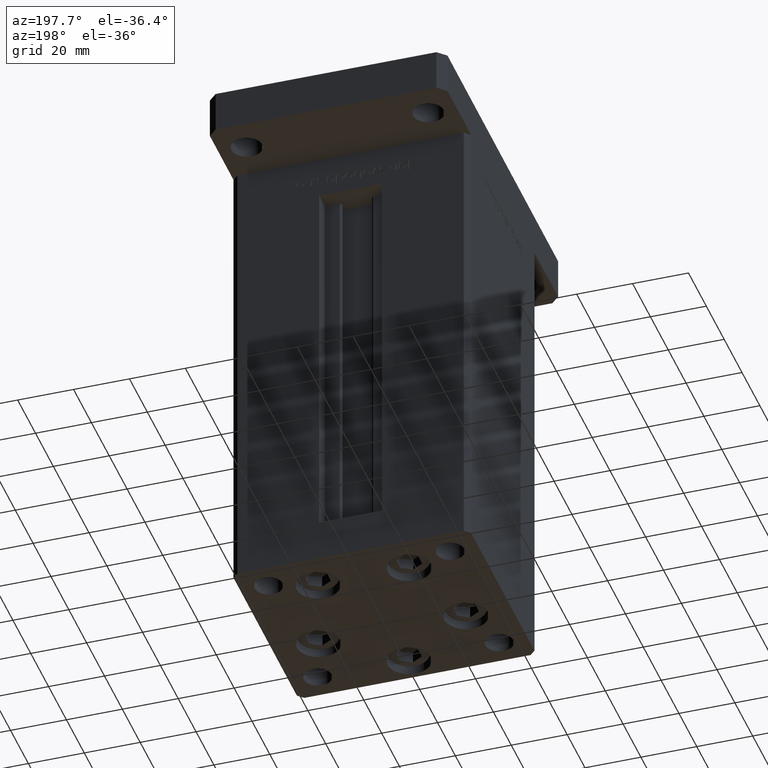
[diagram: clean part render]
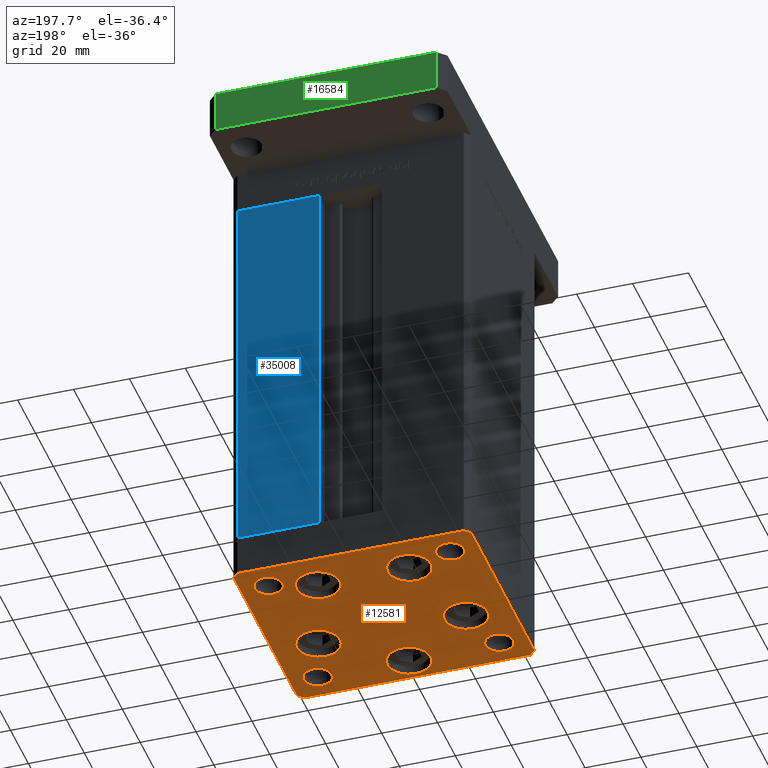
[diagram: same view with three faces highlighted in distinct colors, each labeled with its STEP entity id]
A machine part, auxiliary view with three faces highlighted in distinct colors.
Their STEP definitions:

[orange] entity #12581 — the highlighted planar face has unit normal (0, 0, -1).
#18 = EDGE_CURVE ( 'NONE', #41180, #41699, #9660, .T. ) ;
#27 = CARTESIAN_POINT ( 'NONE',  ( 18.64865316429776954, -9.333333333333330373, 0.000000000000000000 ) ) ;
#90 = DIRECTION ( 'NONE',  ( 0.000000000000000000, -0.000000000000000000, -1.000000000000000000 ) ) ;
#290 = DIRECTION ( 'NONE',  ( 0.000000000000000000, -0.000000000000000000, -1.000000000000000000 ) ) ;
#555 = DIRECTION ( 'NONE',  ( 1.000000000000000000, 0.000000000000000000, 0.000000000000000000 ) ) ;
#569 = AXIS2_PLACEMENT_3D ( 'NONE', #21819, #38362, #17760 ) ;
#852 = VERTEX_POINT ( 'NONE', #40516 ) ;
#1196 = CARTESIAN_POINT ( 'NONE',  ( -32.50000000000000000, -27.49999999999999645, 0.000000000000000000 ) ) ;
#1447 = CARTESIAN_POINT ( 'NONE',  ( 42.49999999999992895, 35.50000000000000000, 0.000000000000000000 ) ) ;
#1515 = AXIS2_PLACEMENT_3D ( 'NONE', #24155, #49361, #16547 ) ;
#1811 = DIRECTION ( 'NONE',  ( 1.000000000000000000, 0.000000000000000000, 0.000000000000000000 ) ) ;
#2284 = CIRCLE ( 'NONE', #569, 5.000000000000000888 ) ;
#2429 = EDGE_LOOP ( 'NONE', ( #10975, #4686 ) ) ;
#2451 = CARTESIAN_POINT ( 'NONE',  ( 40.49999999999991473, 37.50000000000000711, 0.000000000000000000 ) ) ;
#2696 = VERTEX_POINT ( 'NONE', #27134 ) ;
#2708 = EDGE_CURVE ( 'NONE', #28175, #38748, #43661, .T. ) ;
#2770 = AXIS2_PLACEMENT_3D ( 'NONE', #46358, #30103, #47148 ) ;
#2946 = EDGE_CURVE ( 'NONE', #37363, #2696, #33054, .T. ) ;
#3086 = CARTESIAN_POINT ( 'NONE',  ( -42.50000000000000000, -35.50000000000000711, 0.000000000000000000 ) ) ;
#3339 = CARTESIAN_POINT ( 'NONE',  ( -7.749999999999996447, -28.00000000000000000, 0.000000000000000000 ) ) ;
#3395 = CARTESIAN_POINT ( 'NONE',  ( 42.50000000000000711, -35.50000000000000000, 0.000000000000000000 ) ) ;
#3677 = ORIENTED_EDGE ( 'NONE', *, *, #7046, .T. ) ;
#4007 = DIRECTION ( 'NONE',  ( 0.000000000000000000, -0.000000000000000000, -1.000000000000000000 ) ) ;
#4081 = CARTESIAN_POINT ( 'NONE',  ( 42.49999999999992895, 35.50000000000000000, 0.000000000000000000 ) ) ;
#4112 = CARTESIAN_POINT ( 'NONE',  ( -42.50000000000000711, 35.49999999999997158, 0.000000000000000000 ) ) ;
#4686 = ORIENTED_EDGE ( 'NONE', *, *, #44554, .F. ) ;
#4711 = ORIENTED_EDGE ( 'NONE', *, *, #29203, .T. ) ;
#4761 = EDGE_LOOP ( 'NONE', ( #4711, #32501 ) ) ;
#4819 = VERTEX_POINT ( 'NONE', #50353 ) ;
#4963 = VECTOR ( 'NONE', #19016, 1000.000000000000000 ) ;
#5196 = CARTESIAN_POINT ( 'NONE',  ( -40.49999999999999289, -37.50000000000002132, 0.000000000000000000 ) ) ;
#5242 = CARTESIAN_POINT ( 'NONE',  ( 0.000000000000000000, 0.000000000000000000, 0.000000000000000000 ) ) ;
#5273 = VERTEX_POINT ( 'NONE', #28848 ) ;
#5324 = VERTEX_POINT ( 'NONE', #7118 ) ;
#5479 = CIRCLE ( 'NONE', #50407, 7.750000000000000000 ) ;
#5618 = AXIS2_PLACEMENT_3D ( 'NONE', #48943, #28356, #22924 ) ;
#5953 = EDGE_CURVE ( 'NONE', #38748, #12607, #44090, .T. ) ;
#6561 = CIRCLE ( 'NONE', #13499, 7.750000000000000000 ) ;
#6700 = EDGE_CURVE ( 'NONE', #852, #7304, #41818, .T. ) ;
#7046 = EDGE_CURVE ( 'NONE', #16061, #37490, #25377, .T. ) ;
#7118 = CARTESIAN_POINT ( 'NONE',  ( -27.50000000000000000, -27.49999999999999645, 0.000000000000000000 ) ) ;
#7259 = CIRCLE ( 'NONE', #9886, 7.750000000000000000 ) ;
#7304 = VERTEX_POINT ( 'NONE', #33998 ) ;
#7551 = EDGE_CURVE ( 'NONE', #12607, #16602, #49661, .T. ) ;
#7764 = CIRCLE ( 'NONE', #15569, 7.750000000000003553 ) ;
#8348 = CARTESIAN_POINT ( 'NONE',  ( -16.32291334290543006, 22.74999999999999645, 0.000000000000000000 ) ) ;
#8490 = EDGE_LOOP ( 'NONE', ( #29304, #49832 ) ) ;
#8922 = ORIENTED_EDGE ( 'NONE', *, *, #7551, .T. ) ;
#9627 = DIRECTION ( 'NONE',  ( 1.000000000000000000, 0.000000000000000000, 0.000000000000000000 ) ) ;
#9660 = CIRCLE ( 'NONE', #49519, 4.999999999999997335 ) ;
#9886 = AXIS2_PLACEMENT_3D ( 'NONE', #41330, #90, #12575 ) ;
#10073 = VERTEX_POINT ( 'NONE', #3339 ) ;
#10693 = EDGE_LOOP ( 'NONE', ( #38981, #18725 ) ) ;
#10936 = VECTOR ( 'NONE', #33708, 1000.000000000000000 ) ;
#10975 = ORIENTED_EDGE ( 'NONE', *, *, #26875, .F. ) ;
#11271 = AXIS2_PLACEMENT_3D ( 'NONE', #45785, #33070, #17056 ) ;
#11372 = AXIS2_PLACEMENT_3D ( 'NONE', #43314, #34936, #1811 ) ;
#12338 = FACE_BOUND ( 'NONE', #10693, .T. ) ;
#12506 = DIRECTION ( 'NONE',  ( -0.7071067811865474617, 0.7071067811865474617, 0.000000000000000000 ) ) ;
#12575 = DIRECTION ( 'NONE',  ( 1.000000000000000000, 0.000000000000000000, 0.000000000000000000 ) ) ;
#12581 = ADVANCED_FACE ( 'NONE', ( #49227, #12338, #28912, #30498, #22604, #38093, #51359, #13929, #18270, #46743 ), #22342, .T. ) ;
#12607 = VERTEX_POINT ( 'NONE', #1447 ) ;
#12995 = VERTEX_POINT ( 'NONE', #24365 ) ;
#13408 = DIRECTION ( 'NONE',  ( 1.000000000000000000, 0.000000000000000000, 0.000000000000000000 ) ) ;
#13499 = AXIS2_PLACEMENT_3D ( 'NONE', #37463, #290, #555 ) ;
#13575 = CIRCLE ( 'NONE', #31794, 5.000000000000000888 ) ;
#13747 = DIRECTION ( 'NONE',  ( 1.000000000000000000, 0.000000000000000000, 0.000000000000000000 ) ) ;
#13929 = FACE_BOUND ( 'NONE', #2429, .T. ) ;
#14352 = AXIS2_PLACEMENT_3D ( 'NONE', #16557, #33119, #47889 ) ;
#14534 = LINE ( 'NONE', #30836, #53627 ) ;
#15098 = EDGE_LOOP ( 'NONE', ( #20664, #3677 ) ) ;
#15569 = AXIS2_PLACEMENT_3D ( 'NONE', #31538, #22046, #19042 ) ;
#15809 = CARTESIAN_POINT ( 'NONE',  ( -18.64865316429776954, -9.333333333333335702, 0.000000000000000000 ) ) ;
#16061 = VERTEX_POINT ( 'NONE', #16368 ) ;
#16119 = VERTEX_POINT ( 'NONE', #52724 ) ;
#16206 = EDGE_CURVE ( 'NONE', #7304, #852, #7259, .T. ) ;
#16368 = CARTESIAN_POINT ( 'NONE',  ( 34.14865316429776954, -9.333333333333328596, 0.000000000000000000 ) ) ;
#16547 = DIRECTION ( 'NONE',  ( 1.000000000000000000, 0.000000000000000000, 0.000000000000000000 ) ) ;
#16557 = CARTESIAN_POINT ( 'NONE',  ( -26.39865316429776954, -9.333333333333337478, 0.000000000000000000 ) ) ;
#16602 = VERTEX_POINT ( 'NONE', #33944 ) ;
#17056 = DIRECTION ( 'NONE',  ( 1.000000000000000000, 0.000000000000000000, 0.000000000000000000 ) ) ;
#17358 = DIRECTION ( 'NONE',  ( 0.000000000000000000, -0.000000000000000000, -1.000000000000000000 ) ) ;
#17529 = CARTESIAN_POINT ( 'NONE',  ( 42.50000000000000711, -35.50000000000000000, 0.000000000000000000 ) ) ;
#17760 = DIRECTION ( 'NONE',  ( 1.000000000000000000, 0.000000000000000000, 0.000000000000000000 ) ) ;
#18071 = ORIENTED_EDGE ( 'NONE', *, *, #51885, .F. ) ;
#18270 = FACE_OUTER_BOUND ( 'NONE', #32297, .T. ) ;
#18360 = EDGE_CURVE ( 'NONE', #41699, #41180, #48936, .T. ) ;
#18501 = ORIENTED_EDGE ( 'NONE', *, *, #16206, .T. ) ;
#18725 = ORIENTED_EDGE ( 'NONE', *, *, #2946, .T. ) ;
#19016 = DIRECTION ( 'NONE',  ( -1.000000000000000000, -3.426614273534436165E-16, 0.000000000000000000 ) ) ;
#19042 = DIRECTION ( 'NONE',  ( 1.000000000000000000, 0.000000000000000000, 0.000000000000000000 ) ) ;
#19320 = AXIS2_PLACEMENT_3D ( 'NONE', #5242, #38353, #13408 ) ;
#19408 = CARTESIAN_POINT ( 'NONE',  ( -37.50000000000000711, -27.49999999999999645, 0.000000000000000000 ) ) ;
#19706 = EDGE_CURVE ( 'NONE', #16119, #42626, #26479, .T. ) ;
#19815 = EDGE_CURVE ( 'NONE', #20146, #10073, #20405, .T. ) ;
#19859 = ORIENTED_EDGE ( 'NONE', *, *, #5953, .T. ) ;
#20135 = AXIS2_PLACEMENT_3D ( 'NONE', #8348, #4007, #24917 ) ;
#20146 = VERTEX_POINT ( 'NONE', #24234 ) ;
#20405 = CIRCLE ( 'NONE', #33434, 7.750000000000000000 ) ;
#20664 = ORIENTED_EDGE ( 'NONE', *, *, #28223, .T. ) ;
#21302 = DIRECTION ( 'NONE',  ( 1.000000000000000000, 0.000000000000000000, 0.000000000000000000 ) ) ;
#21385 = EDGE_CURVE ( 'NONE', #10073, #20146, #6561, .T. ) ;
#21819 = CARTESIAN_POINT ( 'NONE',  ( -32.50000000000000000, 27.50000000000000355, 0.000000000000000000 ) ) ;
#22046 = DIRECTION ( 'NONE',  ( 0.000000000000000000, -0.000000000000000000, -1.000000000000000000 ) ) ;
#22305 = VERTEX_POINT ( 'NONE', #33499 ) ;
#22342 = PLANE ( 'NONE',  #19320 ) ;
#22452 = AXIS2_PLACEMENT_3D ( 'NONE', #34122, #38443, #13747 ) ;
#22567 = EDGE_CURVE ( 'NONE', #4819, #42409, #29112, .T. ) ;
#22604 = FACE_BOUND ( 'NONE', #49352, .T. ) ;
#22924 = DIRECTION ( 'NONE',  ( 1.000000000000000000, 0.000000000000000000, 0.000000000000000000 ) ) ;
#23425 = DIRECTION ( 'NONE',  ( 0.000000000000000000, -0.000000000000000000, -1.000000000000000000 ) ) ;
#24042 = CIRCLE ( 'NONE', #37022, 7.750000000000000000 ) ;
#24155 = CARTESIAN_POINT ( 'NONE',  ( -32.50000000000000000, -27.49999999999999645, 0.000000000000000000 ) ) ;
#24234 = CARTESIAN_POINT ( 'NONE',  ( 7.750000000000003553, -28.00000000000000000, 0.000000000000000000 ) ) ;
#24365 = CARTESIAN_POINT ( 'NONE',  ( -27.50000000000000000, 27.50000000000000355, 0.000000000000000000 ) ) ;
#24917 = DIRECTION ( 'NONE',  ( 1.000000000000000000, 0.000000000000000000, 0.000000000000000000 ) ) ;
#25068 = CIRCLE ( 'NONE', #22452, 5.000000000000000888 ) ;
#25228 = CARTESIAN_POINT ( 'NONE',  ( -40.50000000000000711, 37.49999999999997868, 0.000000000000000000 ) ) ;
#25377 = CIRCLE ( 'NONE', #49592, 7.750000000000000000 ) ;
#25508 = LINE ( 'NONE', #25228, #26182 ) ;
#25916 = CARTESIAN_POINT ( 'NONE',  ( 26.39865316429776954, -9.333333333333330373, 0.000000000000000000 ) ) ;
#26182 = VECTOR ( 'NONE', #42031, 1000.000000000000000 ) ;
#26479 = CIRCLE ( 'NONE', #14352, 7.750000000000000000 ) ;
#26492 = DIRECTION ( 'NONE',  ( 1.000000000000000000, 1.713307136767217096E-16, 0.000000000000000000 ) ) ;
#26733 = CARTESIAN_POINT ( 'NONE',  ( 26.39865316429776954, -9.333333333333330373, 0.000000000000000000 ) ) ;
#26749 = VERTEX_POINT ( 'NONE', #37585 ) ;
#26858 = EDGE_CURVE ( 'NONE', #51462, #5324, #13575, .T. ) ;
#26875 = EDGE_CURVE ( 'NONE', #12995, #22305, #2284, .T. ) ;
#27134 = CARTESIAN_POINT ( 'NONE',  ( 8.572913342905422951, 22.75000000000000000, 0.000000000000000000 ) ) ;
#27147 = VERTEX_POINT ( 'NONE', #37344 ) ;
#27297 = DIRECTION ( 'NONE',  ( 0.000000000000000000, -0.000000000000000000, -1.000000000000000000 ) ) ;
#27744 = ORIENTED_EDGE ( 'NONE', *, *, #19706, .T. ) ;
#28119 = DIRECTION ( 'NONE',  ( -1.172770800660376741E-15, 1.000000000000000000, 0.000000000000000000 ) ) ;
#28175 = VERTEX_POINT ( 'NONE', #45739 ) ;
#28223 = EDGE_CURVE ( 'NONE', #37490, #16061, #24042, .T. ) ;
#28356 = DIRECTION ( 'NONE',  ( 0.000000000000000000, -0.000000000000000000, -1.000000000000000000 ) ) ;
#28848 = CARTESIAN_POINT ( 'NONE',  ( 27.50000000000000355, 27.49999999999999645, 0.000000000000000000 ) ) ;
#28912 = FACE_BOUND ( 'NONE', #15098, .T. ) ;
#29112 = LINE ( 'NONE', #4112, #10936 ) ;
#29203 = EDGE_CURVE ( 'NONE', #5324, #51462, #40528, .T. ) ;
#29304 = ORIENTED_EDGE ( 'NONE', *, *, #21385, .T. ) ;
#29724 = DIRECTION ( 'NONE',  ( 0.000000000000000000, -0.000000000000000000, -1.000000000000000000 ) ) ;
#29894 = EDGE_CURVE ( 'NONE', #16602, #26749, #39628, .T. ) ;
#30103 = DIRECTION ( 'NONE',  ( -0.000000000000000000, 0.000000000000000000, 1.000000000000000000 ) ) ;
#30141 = CARTESIAN_POINT ( 'NONE',  ( 24.07291334290542650, 22.75000000000000000, 0.000000000000000000 ) ) ;
#30498 = FACE_BOUND ( 'NONE', #8490, .T. ) ;
#30597 = VECTOR ( 'NONE', #12506, 1000.000000000000114 ) ;
#30836 = CARTESIAN_POINT ( 'NONE',  ( -40.49999999999999289, -37.50000000000002132, 0.000000000000000000 ) ) ;
#31061 = EDGE_CURVE ( 'NONE', #42409, #53588, #52998, .T. ) ;
#31479 = DIRECTION ( 'NONE',  ( 0.7071067811865474617, 0.7071067811865474617, 0.000000000000000000 ) ) ;
#31538 = CARTESIAN_POINT ( 'NONE',  ( 16.32291334290542295, 22.75000000000000000, 0.000000000000000000 ) ) ;
#31794 = AXIS2_PLACEMENT_3D ( 'NONE', #1196, #29724, #21302 ) ;
#32297 = EDGE_LOOP ( 'NONE', ( #38145, #38361, #47954, #19859, #8922, #47068, #37226, #34138 ) ) ;
#32501 = ORIENTED_EDGE ( 'NONE', *, *, #26858, .T. ) ;
#33054 = CIRCLE ( 'NONE', #11372, 7.750000000000003553 ) ;
#33070 = DIRECTION ( 'NONE',  ( -0.000000000000000000, 0.000000000000000000, 1.000000000000000000 ) ) ;
#33119 = DIRECTION ( 'NONE',  ( 0.000000000000000000, -0.000000000000000000, -1.000000000000000000 ) ) ;
#33193 = ORIENTED_EDGE ( 'NONE', *, *, #18, .T. ) ;
#33434 = AXIS2_PLACEMENT_3D ( 'NONE', #51689, #27297, #44082 ) ;
#33499 = CARTESIAN_POINT ( 'NONE',  ( -37.50000000000000711, 27.50000000000000355, 0.000000000000000000 ) ) ;
#33708 = DIRECTION ( 'NONE',  ( 9.773090005503140331E-17, -1.000000000000000000, 0.000000000000000000 ) ) ;
#33944 = CARTESIAN_POINT ( 'NONE',  ( 40.49999999999991473, 37.50000000000000711, 0.000000000000000000 ) ) ;
#33998 = CARTESIAN_POINT ( 'NONE',  ( -8.572913342905431833, 22.74999999999999645, 0.000000000000000000 ) ) ;
#34122 = CARTESIAN_POINT ( 'NONE',  ( -32.50000000000000000, 27.50000000000000355, 0.000000000000000000 ) ) ;
#34138 = ORIENTED_EDGE ( 'NONE', *, *, #22567, .T. ) ;
#34936 = DIRECTION ( 'NONE',  ( 0.000000000000000000, -0.000000000000000000, -1.000000000000000000 ) ) ;
#35117 = DIRECTION ( 'NONE',  ( 1.000000000000000000, 0.000000000000000000, 0.000000000000000000 ) ) ;
#36183 = DIRECTION ( 'NONE',  ( 1.000000000000000000, 0.000000000000000000, 0.000000000000000000 ) ) ;
#36430 = CIRCLE ( 'NONE', #11271, 4.999999999999997335 ) ;
#36606 = VECTOR ( 'NONE', #28119, 1000.000000000000000 ) ;
#37022 = AXIS2_PLACEMENT_3D ( 'NONE', #26733, #50870, #9627 ) ;
#37159 = EDGE_CURVE ( 'NONE', #27147, #5273, #36430, .T. ) ;
#37226 = ORIENTED_EDGE ( 'NONE', *, *, #51838, .T. ) ;
#37344 = CARTESIAN_POINT ( 'NONE',  ( 37.50000000000000000, 27.49999999999999645, 0.000000000000000000 ) ) ;
#37363 = VERTEX_POINT ( 'NONE', #30141 ) ;
#37463 = CARTESIAN_POINT ( 'NONE',  ( 3.429011037612589276E-15, -28.00000000000000000, 0.000000000000000000 ) ) ;
#37490 = VERTEX_POINT ( 'NONE', #27 ) ;
#37585 = CARTESIAN_POINT ( 'NONE',  ( -40.50000000000000711, 37.49999999999997868, 0.000000000000000000 ) ) ;
#38093 = FACE_BOUND ( 'NONE', #52345, .T. ) ;
#38145 = ORIENTED_EDGE ( 'NONE', *, *, #31061, .T. ) ;
#38353 = DIRECTION ( 'NONE',  ( -0.000000000000000000, 0.000000000000000000, 1.000000000000000000 ) ) ;
#38361 = ORIENTED_EDGE ( 'NONE', *, *, #43702, .T. ) ;
#38362 = DIRECTION ( 'NONE',  ( -0.000000000000000000, 0.000000000000000000, 1.000000000000000000 ) ) ;
#38443 = DIRECTION ( 'NONE',  ( -0.000000000000000000, 0.000000000000000000, 1.000000000000000000 ) ) ;
#38704 = ORIENTED_EDGE ( 'NONE', *, *, #6700, .T. ) ;
#38748 = VERTEX_POINT ( 'NONE', #17529 ) ;
#38981 = ORIENTED_EDGE ( 'NONE', *, *, #45369, .T. ) ;
#39173 = DIRECTION ( 'NONE',  ( 0.000000000000000000, -0.000000000000000000, -1.000000000000000000 ) ) ;
#39628 = LINE ( 'NONE', #2451, #4963 ) ;
#40260 = DIRECTION ( 'NONE',  ( 0.7071067811865463515, -0.7071067811865487940, 0.000000000000000000 ) ) ;
#40516 = CARTESIAN_POINT ( 'NONE',  ( -24.07291334290543006, 22.74999999999999645, 0.000000000000000000 ) ) ;
#40528 = CIRCLE ( 'NONE', #1515, 5.000000000000000888 ) ;
#40822 = ORIENTED_EDGE ( 'NONE', *, *, #37159, .F. ) ;
#41162 = CARTESIAN_POINT ( 'NONE',  ( -42.50000000000000000, -35.50000000000000711, 0.000000000000000000 ) ) ;
#41180 = VERTEX_POINT ( 'NONE', #49675 ) ;
#41330 = CARTESIAN_POINT ( 'NONE',  ( -16.32291334290543006, 22.74999999999999645, 0.000000000000000000 ) ) ;
#41501 = CARTESIAN_POINT ( 'NONE',  ( -26.39865316429776954, -9.333333333333337478, 0.000000000000000000 ) ) ;
#41699 = VERTEX_POINT ( 'NONE', #46526 ) ;
#41765 = DIRECTION ( 'NONE',  ( 1.000000000000000000, 0.000000000000000000, 0.000000000000000000 ) ) ;
#41818 = CIRCLE ( 'NONE', #20135, 7.750000000000000000 ) ;
#41823 = VECTOR ( 'NONE', #31479, 1000.000000000000114 ) ;
#42031 = DIRECTION ( 'NONE',  ( -0.7071067811865463515, -0.7071067811865487940, 0.000000000000000000 ) ) ;
#42263 = VECTOR ( 'NONE', #40260, 1000.000000000000000 ) ;
#42409 = VERTEX_POINT ( 'NONE', #41162 ) ;
#42626 = VERTEX_POINT ( 'NONE', #15809 ) ;
#43170 = EDGE_CURVE ( 'NONE', #42626, #16119, #5479, .T. ) ;
#43314 = CARTESIAN_POINT ( 'NONE',  ( 16.32291334290542295, 22.75000000000000000, 0.000000000000000000 ) ) ;
#43661 = LINE ( 'NONE', #52058, #41823 ) ;
#43702 = EDGE_CURVE ( 'NONE', #53588, #28175, #14534, .T. ) ;
#44031 = CARTESIAN_POINT ( 'NONE',  ( 32.50000000000000000, -27.49999999999999645, 0.000000000000000000 ) ) ;
#44082 = DIRECTION ( 'NONE',  ( 1.000000000000000000, 0.000000000000000000, 0.000000000000000000 ) ) ;
#44090 = LINE ( 'NONE', #3395, #36606 ) ;
#44554 = EDGE_CURVE ( 'NONE', #22305, #12995, #25068, .T. ) ;
#45369 = EDGE_CURVE ( 'NONE', #2696, #37363, #7764, .T. ) ;
#45739 = CARTESIAN_POINT ( 'NONE',  ( 40.50000000000000000, -37.50000000000000711, 0.000000000000000000 ) ) ;
#45785 = CARTESIAN_POINT ( 'NONE',  ( 32.50000000000000000, 27.49999999999999645, 0.000000000000000000 ) ) ;
#46358 = CARTESIAN_POINT ( 'NONE',  ( 32.50000000000000000, 27.49999999999999645, 0.000000000000000000 ) ) ;
#46526 = CARTESIAN_POINT ( 'NONE',  ( 27.50000000000000355, -27.49999999999999645, 0.000000000000000000 ) ) ;
#46743 = FACE_BOUND ( 'NONE', #4761, .T. ) ;
#47068 = ORIENTED_EDGE ( 'NONE', *, *, #29894, .T. ) ;
#47148 = DIRECTION ( 'NONE',  ( 1.000000000000000000, 0.000000000000000000, 0.000000000000000000 ) ) ;
#47270 = ORIENTED_EDGE ( 'NONE', *, *, #18360, .T. ) ;
#47889 = DIRECTION ( 'NONE',  ( 1.000000000000000000, 0.000000000000000000, 0.000000000000000000 ) ) ;
#47954 = ORIENTED_EDGE ( 'NONE', *, *, #2708, .T. ) ;
#48936 = CIRCLE ( 'NONE', #5618, 4.999999999999997335 ) ;
#48943 = CARTESIAN_POINT ( 'NONE',  ( 32.50000000000000000, -27.49999999999999645, 0.000000000000000000 ) ) ;
#49227 = FACE_BOUND ( 'NONE', #53060, .T. ) ;
#49352 = EDGE_LOOP ( 'NONE', ( #27744, #50825 ) ) ;
#49361 = DIRECTION ( 'NONE',  ( 0.000000000000000000, -0.000000000000000000, -1.000000000000000000 ) ) ;
#49457 = EDGE_LOOP ( 'NONE', ( #33193, #47270 ) ) ;
#49519 = AXIS2_PLACEMENT_3D ( 'NONE', #44031, #23425, #36183 ) ;
#49592 = AXIS2_PLACEMENT_3D ( 'NONE', #25916, #39173, #35117 ) ;
#49661 = LINE ( 'NONE', #4081, #30597 ) ;
#49675 = CARTESIAN_POINT ( 'NONE',  ( 37.50000000000000000, -27.49999999999999645, 0.000000000000000000 ) ) ;
#49832 = ORIENTED_EDGE ( 'NONE', *, *, #19815, .T. ) ;
#50353 = CARTESIAN_POINT ( 'NONE',  ( -42.50000000000000711, 35.49999999999997158, 0.000000000000000000 ) ) ;
#50407 = AXIS2_PLACEMENT_3D ( 'NONE', #41501, #17358, #41765 ) ;
#50410 = CIRCLE ( 'NONE', #2770, 4.999999999999997335 ) ;
#50825 = ORIENTED_EDGE ( 'NONE', *, *, #43170, .T. ) ;
#50870 = DIRECTION ( 'NONE',  ( 0.000000000000000000, -0.000000000000000000, -1.000000000000000000 ) ) ;
#51359 = FACE_BOUND ( 'NONE', #49457, .T. ) ;
#51462 = VERTEX_POINT ( 'NONE', #19408 ) ;
#51689 = CARTESIAN_POINT ( 'NONE',  ( 3.429011037612589276E-15, -28.00000000000000000, 0.000000000000000000 ) ) ;
#51838 = EDGE_CURVE ( 'NONE', #26749, #4819, #25508, .T. ) ;
#51885 = EDGE_CURVE ( 'NONE', #5273, #27147, #50410, .T. ) ;
#52058 = CARTESIAN_POINT ( 'NONE',  ( 40.50000000000000000, -37.50000000000000711, 0.000000000000000000 ) ) ;
#52345 = EDGE_LOOP ( 'NONE', ( #40822, #18071 ) ) ;
#52724 = CARTESIAN_POINT ( 'NONE',  ( -34.14865316429776954, -9.333333333333337478, 0.000000000000000000 ) ) ;
#52998 = LINE ( 'NONE', #3086, #42263 ) ;
#53060 = EDGE_LOOP ( 'NONE', ( #38704, #18501 ) ) ;
#53588 = VERTEX_POINT ( 'NONE', #5196 ) ;
#53627 = VECTOR ( 'NONE', #26492, 1000.000000000000000 ) ;

[blue] entity #35008 — the highlighted planar face has unit normal (-0, -1, 0).
#3748 = VECTOR ( 'NONE', #51556, 1000.000000000000000 ) ;
#6581 = VERTEX_POINT ( 'NONE', #36596 ) ;
#6625 = CARTESIAN_POINT ( 'NONE',  ( -11.25000000000000000, 37.50000000000000000, 138.5000000000000000 ) ) ;
#7044 = CARTESIAN_POINT ( 'NONE',  ( 11.25000000000000000, 37.50000000000000000, 0.000000000000000000 ) ) ;
#9913 = ORIENTED_EDGE ( 'NONE', *, *, #10108, .T. ) ;
#10108 = EDGE_CURVE ( 'NONE', #52227, #36004, #15555, .T. ) ;
#10957 = LINE ( 'NONE', #6625, #18768 ) ;
#12537 = ORIENTED_EDGE ( 'NONE', *, *, #16383, .T. ) ;
#14402 = CARTESIAN_POINT ( 'NONE',  ( -11.25000000000000000, 37.50000000000000000, 138.5000000000000000 ) ) ;
#14677 = CARTESIAN_POINT ( 'NONE',  ( 11.25000000000000000, 37.50000000000000000, 0.000000000000000000 ) ) ;
#15555 = LINE ( 'NONE', #52180, #47058 ) ;
#16383 = EDGE_CURVE ( 'NONE', #22350, #52227, #22049, .T. ) ;
#18754 = DIRECTION ( 'NONE',  ( -2.372271420139223331E-16, -1.000000000000000000, 0.000000000000000000 ) ) ;
#18768 = VECTOR ( 'NONE', #23727, 1000.000000000000000 ) ;
#19045 = DIRECTION ( 'NONE',  ( -0.000000000000000000, -0.000000000000000000, -1.000000000000000000 ) ) ;
#22049 = LINE ( 'NONE', #51585, #40228 ) ;
#22350 = VERTEX_POINT ( 'NONE', #35090 ) ;
#23727 = DIRECTION ( 'NONE',  ( 1.000000000000000000, 0.000000000000000000, 0.000000000000000000 ) ) ;
#25080 = AXIS2_PLACEMENT_3D ( 'NONE', #14402, #18754, #50764 ) ;
#27382 = EDGE_CURVE ( 'NONE', #6581, #22350, #10957, .T. ) ;
#35008 = ADVANCED_FACE ( 'NONE', ( #47754 ), #46685, .F. ) ;
#35090 = CARTESIAN_POINT ( 'NONE',  ( 40.50000000000000000, 37.50000000000000711, 138.5000000000000000 ) ) ;
#35971 = CARTESIAN_POINT ( 'NONE',  ( 40.50000000000000000, 37.50000000000000711, 0.000000000000000000 ) ) ;
#36004 = VERTEX_POINT ( 'NONE', #14677 ) ;
#36596 = CARTESIAN_POINT ( 'NONE',  ( 11.24999999999999289, 37.50000000000000000, 138.5000000000000000 ) ) ;
#39848 = EDGE_LOOP ( 'NONE', ( #9913, #50978, #44359, #12537 ) ) ;
#40228 = VECTOR ( 'NONE', #19045, 1000.000000000000000 ) ;
#42841 = EDGE_CURVE ( 'NONE', #36004, #6581, #47479, .T. ) ;
#44359 = ORIENTED_EDGE ( 'NONE', *, *, #27382, .T. ) ;
#46685 = PLANE ( 'NONE',  #25080 ) ;
#47058 = VECTOR ( 'NONE', #52445, 1000.000000000000000 ) ;
#47479 = LINE ( 'NONE', #7044, #3748 ) ;
#47754 = FACE_OUTER_BOUND ( 'NONE', #39848, .T. ) ;
#50764 = DIRECTION ( 'NONE',  ( 1.000000000000000000, -2.372271420139223331E-16, 0.000000000000000000 ) ) ;
#50978 = ORIENTED_EDGE ( 'NONE', *, *, #42841, .T. ) ;
#51556 = DIRECTION ( 'NONE',  ( -0.000000000000000000, -0.000000000000000000, 1.000000000000000000 ) ) ;
#51585 = CARTESIAN_POINT ( 'NONE',  ( 40.50000000000000000, 37.50000000000000711, 138.5000000000000000 ) ) ;
#52180 = CARTESIAN_POINT ( 'NONE',  ( -11.25000000000000000, 37.50000000000000000, 0.000000000000000000 ) ) ;
#52227 = VERTEX_POINT ( 'NONE', #35971 ) ;
#52445 = DIRECTION ( 'NONE',  ( -1.000000000000000000, 2.372271420139223331E-16, 0.000000000000000000 ) ) ;

[green] entity #16584 — the highlighted planar face has unit normal (0, -1, 0).
#4343 = DIRECTION ( 'NONE',  ( -0.000000000000000000, -0.000000000000000000, -1.000000000000000000 ) ) ;
#7557 = EDGE_CURVE ( 'NONE', #49649, #40690, #24991, .T. ) ;
#9689 = VERTEX_POINT ( 'NONE', #21381 ) ;
#9771 = VECTOR ( 'NONE', #4343, 1000.000000000000000 ) ;
#12282 = DIRECTION ( 'NONE',  ( -0.000000000000000000, -0.000000000000000000, -1.000000000000000000 ) ) ;
#13041 = PLANE ( 'NONE',  #39378 ) ;
#13068 = LINE ( 'NONE', #29639, #24824 ) ;
#16584 = ADVANCED_FACE ( 'NONE', ( #33150 ), #13041, .F. ) ;
#18053 = CARTESIAN_POINT ( 'NONE',  ( 39.50000000000002842, 65.00000000000002842, 0.000000000000000000 ) ) ;
#21381 = CARTESIAN_POINT ( 'NONE',  ( -39.50000000000003553, 65.00000000000000000, 15.00000000000000000 ) ) ;
#21989 = VERTEX_POINT ( 'NONE', #46012 ) ;
#22627 = EDGE_CURVE ( 'NONE', #49649, #9689, #13068, .T. ) ;
#23373 = EDGE_CURVE ( 'NONE', #9689, #21989, #44572, .T. ) ;
#24212 = ORIENTED_EDGE ( 'NONE', *, *, #22627, .F. ) ;
#24824 = VECTOR ( 'NONE', #46160, 1000.000000000000000 ) ;
#24991 = LINE ( 'NONE', #41522, #9771 ) ;
#24997 = DIRECTION ( 'NONE',  ( 3.513364001978341005E-16, -1.000000000000000000, 0.000000000000000000 ) ) ;
#25007 = CARTESIAN_POINT ( 'NONE',  ( 39.50000000000002842, 65.00000000000002842, 15.00000000000000000 ) ) ;
#29345 = DIRECTION ( 'NONE',  ( 1.000000000000000000, 3.513364001978341005E-16, 0.000000000000000000 ) ) ;
#29609 = CARTESIAN_POINT ( 'NONE',  ( 39.50000000000002842, 65.00000000000002842, 15.00000000000000000 ) ) ;
#29639 = CARTESIAN_POINT ( 'NONE',  ( 39.50000000000002842, 65.00000000000002842, 15.00000000000000000 ) ) ;
#30019 = LINE ( 'NONE', #18053, #34776 ) ;
#30140 = ORIENTED_EDGE ( 'NONE', *, *, #50450, .T. ) ;
#31798 = VECTOR ( 'NONE', #12282, 1000.000000000000000 ) ;
#32917 = CARTESIAN_POINT ( 'NONE',  ( -39.50000000000003553, 65.00000000000000000, 15.00000000000000000 ) ) ;
#33150 = FACE_OUTER_BOUND ( 'NONE', #40879, .T. ) ;
#34776 = VECTOR ( 'NONE', #38929, 1000.000000000000000 ) ;
#38929 = DIRECTION ( 'NONE',  ( -1.000000000000000000, -3.513364001978340512E-16, 0.000000000000000000 ) ) ;
#39378 = AXIS2_PLACEMENT_3D ( 'NONE', #29609, #24997, #29345 ) ;
#40690 = VERTEX_POINT ( 'NONE', #48445 ) ;
#40879 = EDGE_LOOP ( 'NONE', ( #30140, #51300, #24212, #41039 ) ) ;
#41039 = ORIENTED_EDGE ( 'NONE', *, *, #7557, .T. ) ;
#41522 = CARTESIAN_POINT ( 'NONE',  ( 39.50000000000002842, 65.00000000000002842, 15.00000000000000000 ) ) ;
#44572 = LINE ( 'NONE', #32917, #31798 ) ;
#46012 = CARTESIAN_POINT ( 'NONE',  ( -39.50000000000003553, 65.00000000000000000, 0.000000000000000000 ) ) ;
#46160 = DIRECTION ( 'NONE',  ( -1.000000000000000000, -3.513364001978340512E-16, 0.000000000000000000 ) ) ;
#48445 = CARTESIAN_POINT ( 'NONE',  ( 39.50000000000002842, 65.00000000000002842, 0.000000000000000000 ) ) ;
#49649 = VERTEX_POINT ( 'NONE', #25007 ) ;
#50450 = EDGE_CURVE ( 'NONE', #40690, #21989, #30019, .T. ) ;
#51300 = ORIENTED_EDGE ( 'NONE', *, *, #23373, .F. ) ;